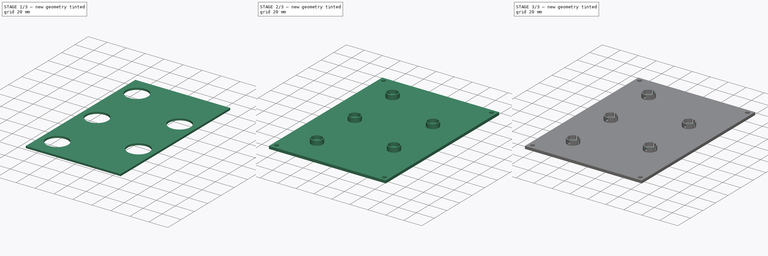
[diagram: build sequence overview — one tinted view per stage of 3, left to right]
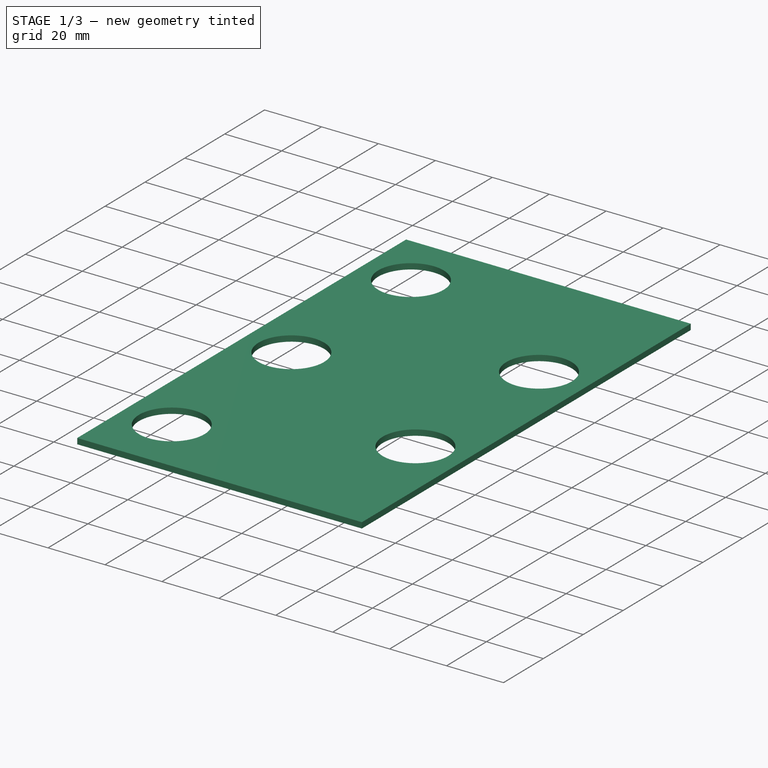
[diagram: stage 1 of 3 — iso view after this stage's code; geometry added in this stage tinted green]
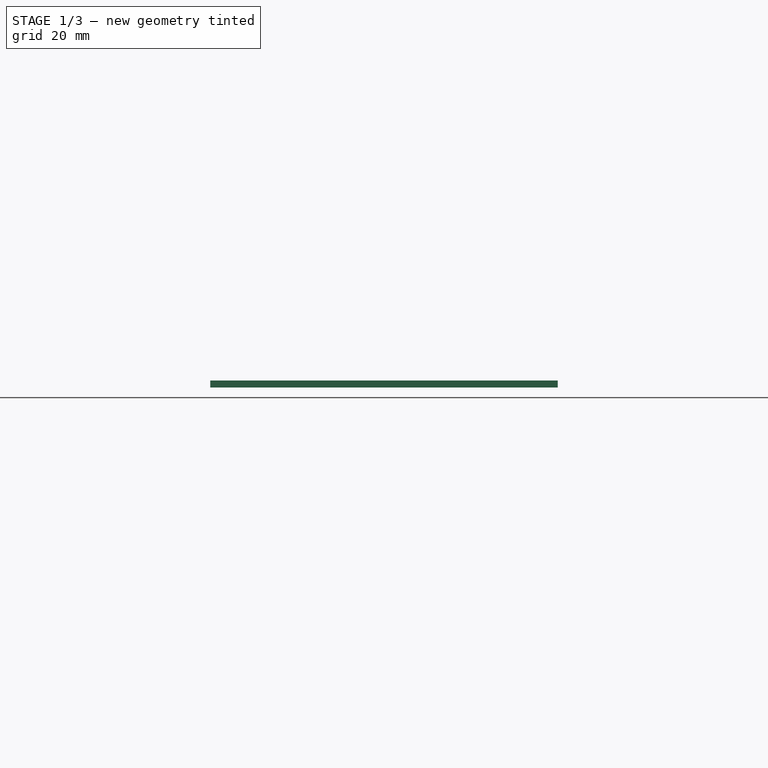
[diagram: stage 1 of 3 — front view after this stage's code; geometry added in this stage tinted green]
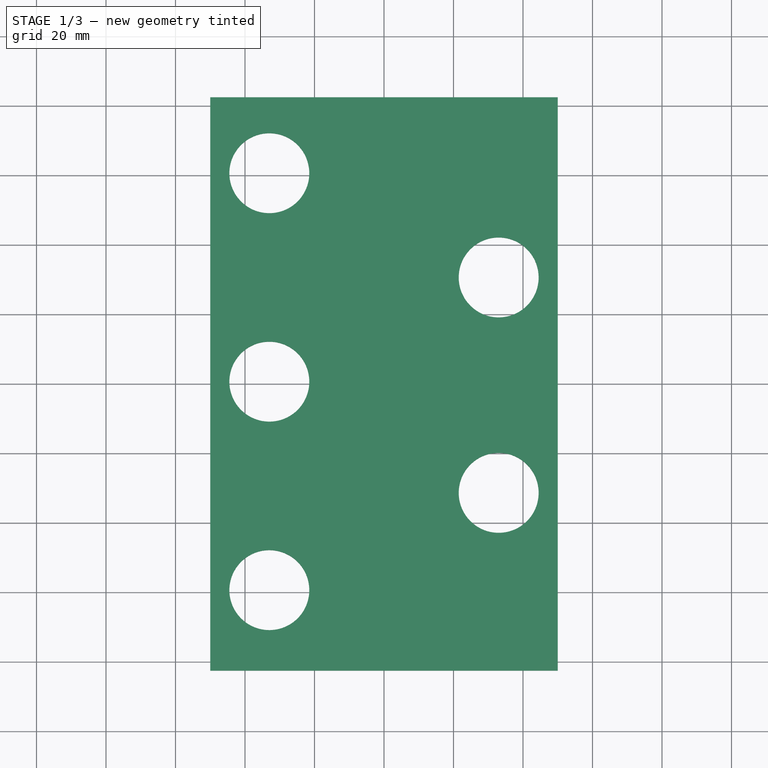
[diagram: stage 1 of 3 — top view after this stage's code; geometry added in this stage tinted green]
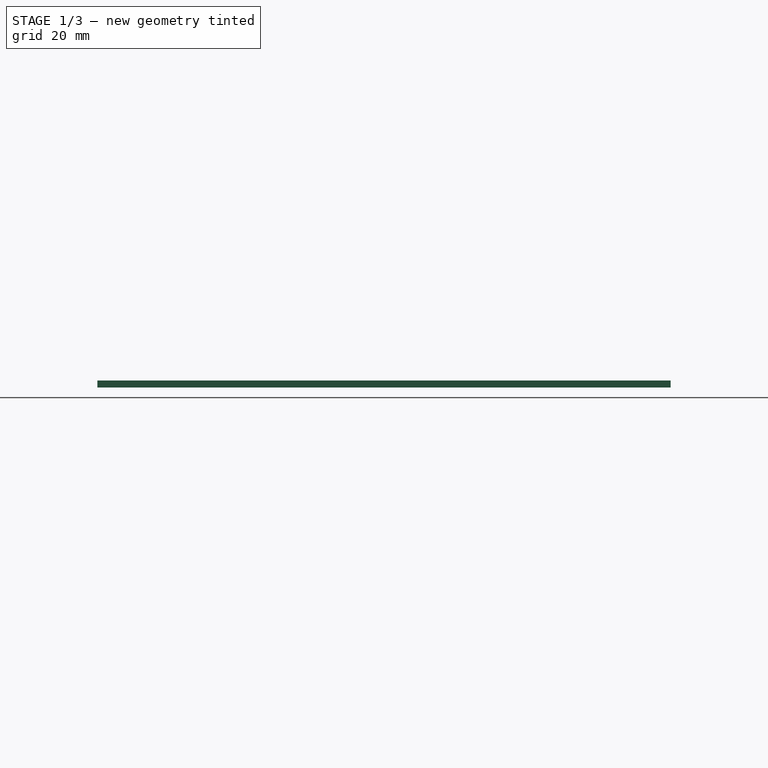
[diagram: stage 1 of 3 — right view after this stage's code; geometry added in this stage tinted green]
FCSTD DOCUMENT  (FreeCAD 0.19R23578 (Git))
Label: nudge_lamp_holder
License: All rights reserved
LicenseURL: http://en.wikipedia.org/wiki/All_rights_reserved
objects: Sketcher::SketchObject×7, PartDesign::Pocket×4, PartDesign::Pad×2, PartDesign::Hole×1, PartDesign::Body×1
note: 22 computed .brp shape members not serialized (recipe doc carries the construction recipe); baked Part::Feature solids carry a one-line shape summary decoded from their .brp

FEATURE [Sketcher::SketchObject] Sketch
  MapMode = 5
  Support = -> [XY_Plane]
  sketch-geometry (4):
    g0: LineSegment StartX=-50 StartY=82.5 StartZ=0 EndX=50 EndY=82.5 EndZ=0
    g1: LineSegment StartX=50 StartY=82.5 StartZ=0 EndX=50 EndY=-82.5 EndZ=0
    g2: LineSegment StartX=50 StartY=-82.5 StartZ=0 EndX=-50 EndY=-82.5 EndZ=0
    g3: LineSegment StartX=-50 StartY=-82.5 StartZ=0 EndX=-50 EndY=82.5 EndZ=0
  constraints (10):
    c: Coincident(g0,g1)
    c: Coincident(g1,g2)
    c: Coincident(g2,g3)
    c: Coincident(g3,g0)
    c: Horizontal(g2)
    c: Vertical(g1)
    c: Distance(g0) = 100
    c: Distance(g1) = 165
    c: Symmetric(g0,g0,g-2)
    c: Symmetric(g2,g0,g-1)
FEATURE [PartDesign::Pad] Pad
  AllowMultiFace = false
  Direction = (1,1,1)
  Length = 2
  Length2 = 100
  Profile = -> Sketch
  Type = 0
FEATURE [Sketcher::SketchObject] Sketch001
  ExternalGeometry = -> [Pad]
  MapMode = 5
  Placement = pos=(0,0,0) rot=(1,0,0;3.14159rad)
  Support = -> [Pad]
  expr: Constraints[8] = 141 - 75
  sketch-geometry (5):
    g0: Circle CenterX=-33 CenterY=59.3431 CenterZ=0 NormalX=0 NormalY=0 NormalZ=1 AngleXU=0 Radius=11.5
    g1: Circle CenterX=-33 CenterY=-0.656905 CenterZ=0 NormalX=0 NormalY=0 NormalZ=1 AngleXU=0 Radius=11.5
    g2: Circle CenterX=-33 CenterY=-60.6569 CenterZ=0 NormalX=0 NormalY=0 NormalZ=1 AngleXU=0 Radius=11.5
    g3: Circle CenterX=33 CenterY=31.3431 CenterZ=0 NormalX=0 NormalY=0 NormalZ=1 AngleXU=0 Radius=11.5
    g4: Circle CenterX=33 CenterY=-30.6569 CenterZ=0 NormalX=0 NormalY=0 NormalZ=1 AngleXU=0 Radius=11.5
  constraints (14):
    c: Diameter(g1) = 23
    c: Equal(g1,g0)
    c: Equal(g1,g2) = 23
    c: DistanceY(g2,g1) = 60
    c: DistanceY(g1,g0) = 60
    c: Diameter(g3) = 23
    c: Equal(g3,g4) = 23
    c: DistanceY(g4,g3) = 62
    c: DistanceX(g0,g3) = 66
    c: DistanceX(g0,g-1) = 33
    c: DistanceX(g1,g3) = 66
    c: DistanceX(g1,g4) = 66
    c: DistanceX(g2,g4) = 66
    c: DistanceY(g3,g0) = 28
FEATURE [PartDesign::Pocket] Pocket
  BaseFeature = -> Pad
  Length = 2
  Length2 = 100
  Profile = -> Sketch001
  Type = 0
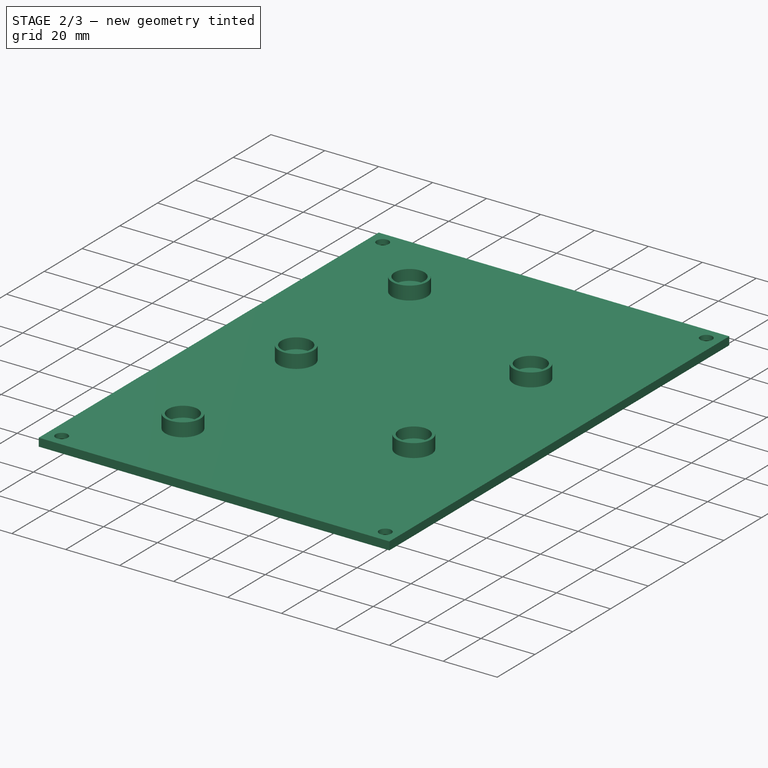
[diagram: stage 2 of 3 — iso view after this stage's code; geometry added in this stage tinted green]
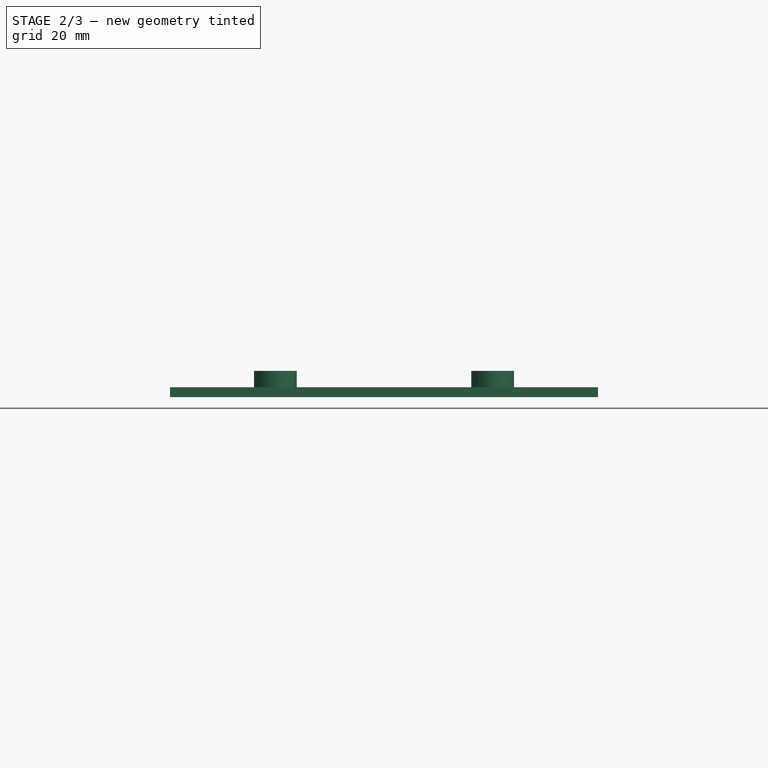
[diagram: stage 2 of 3 — front view after this stage's code; geometry added in this stage tinted green]
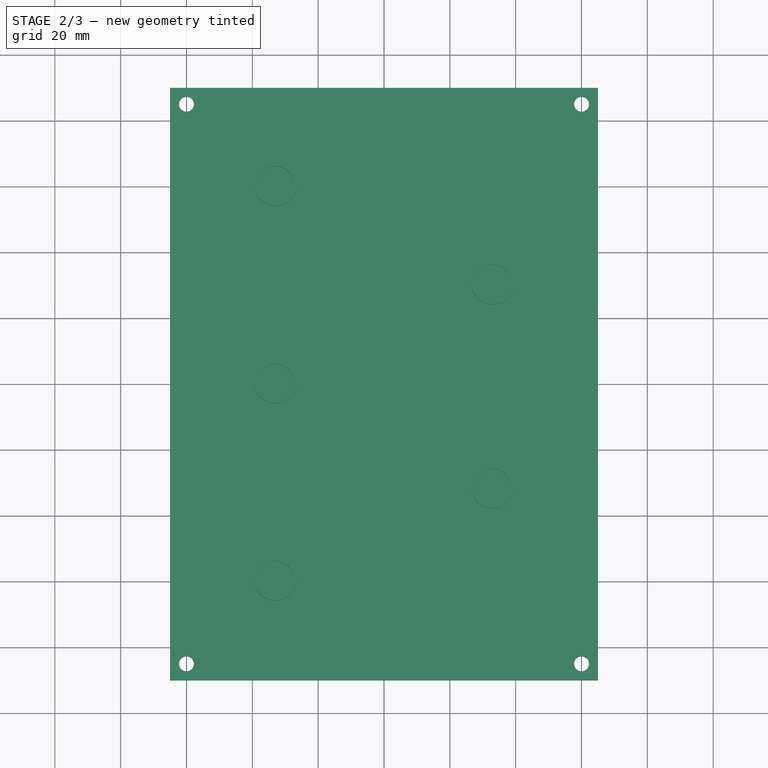
[diagram: stage 2 of 3 — top view after this stage's code; geometry added in this stage tinted green]
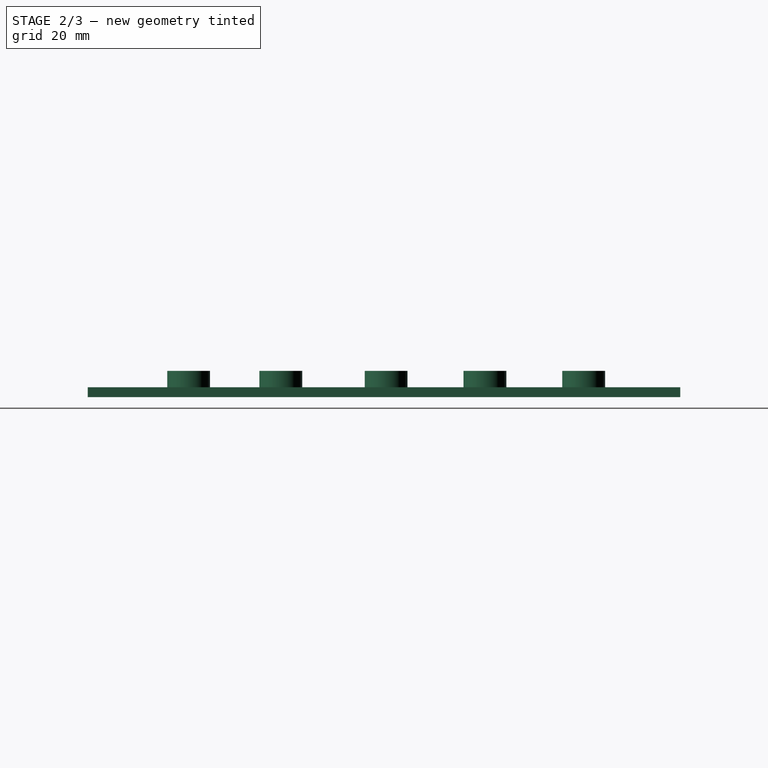
[diagram: stage 2 of 3 — right view after this stage's code; geometry added in this stage tinted green]
FEATURE [Sketcher::SketchObject] Sketch002
  ExternalGeometry = -> [Pocket]
  MapMode = 5
  Placement = pos=(0,0,0) rot=(1,0,0;3.14159rad)
  Support = -> [Pocket]
  sketch-geometry (4):
    g0: Circle CenterX=-45 CenterY=77.5 CenterZ=0 NormalX=0 NormalY=0 NormalZ=1 AngleXU=0 Radius=1.5
    g1: Circle CenterX=-45 CenterY=-77.5 CenterZ=0 NormalX=0 NormalY=0 NormalZ=1 AngleXU=0 Radius=1.5
    g2: Circle CenterX=45 CenterY=77.5 CenterZ=0 NormalX=0 NormalY=0 NormalZ=1 AngleXU=0 Radius=1.5
    g3: Circle CenterX=45 CenterY=-77.5 CenterZ=0 NormalX=0 NormalY=0 NormalZ=1 AngleXU=0 Radius=1.5
  constraints (12):
    c: Diameter(g0) = 3
    c: DistanceY(g0,g-4) = 5
    c: DistanceX(g-4,g0) = 5
    c: Equal(g0,g1) = 3
    c: Equal(g0,g2) = 3
    c: DistanceY(g-6,g3) = 5
    c: DistanceX(g3,g-6) = 5
    c: DistanceY(g-6,g1) = 5
    c: DistanceX(g-6,g1) = 5
    c: DistanceX(g2,g-5) = 5
    c: DistanceY(g2,g-5) = 5
    c: Diameter(g3) = 3
FEATURE [PartDesign::Hole] Hole
  BaseFeature = -> Pocket
  Depth = 25
  DepthType = 0
  Diameter = 4.5
  DrillPoint = 1
  DrillPointAngle = 118
  HoleCutCountersinkAngle = 90
  HoleCutDepth = 0
  HoleCutDiameter = 6.7
  HoleCutType = 2
  ModelActualThread = false
  Profile = -> Sketch002
  Tapered = false
  TaperedAngle = 90
  ThreadAngle = 0
  ThreadClass = 0
  ThreadCutOffInner = 0
  ThreadCutOffOuter = 0
  ThreadDirection = 0
  ThreadFit = 0
  ThreadPitch = 0
  ThreadSize = 11
  ThreadType = 1
  Threaded = false
FEATURE [Sketcher::SketchObject] Sketch003
  ExternalGeometry = -> [Hole]
  MapMode = 5
  Placement = pos=(0,0,2) rot=(0,0,1;0rad)
  Support = -> [Hole]
  sketch-geometry (5):
    g0: Circle CenterX=33 CenterY=30.6569 CenterZ=0 NormalX=0 NormalY=0 NormalZ=1 AngleXU=0 Radius=6.5
    g1: Circle CenterX=-33 CenterY=60.6569 CenterZ=0 NormalX=0 NormalY=0 NormalZ=1 AngleXU=0 Radius=6.5
    g2: Circle CenterX=-33 CenterY=0.656905 CenterZ=0 NormalX=0 NormalY=0 NormalZ=1 AngleXU=0 Radius=6.5
    g3: Circle CenterX=33 CenterY=-31.3431 CenterZ=0 NormalX=0 NormalY=0 NormalZ=1 AngleXU=0 Radius=6.5
    g4: Circle CenterX=-45 CenterY=-77.5 CenterZ=0 NormalX=0 NormalY=0 NormalZ=1 AngleXU=0 Radius=6.5
  constraints (10):
    c: Coincident(g1,g-3)
    c: Coincident(g2,g-6)
    c: Coincident(g3,g-5)
    c: Diameter(g2) = 13
    c: Diameter(g4) = 13
    c: Diameter(g3) = 13
    c: Diameter(g0) = 13
    c: Coincident(g-7,g0)
    c: Diameter(g1) = 13
    c: Coincident(g4,g-8)
FEATURE [PartDesign::Pad] Pad001
  BaseFeature = -> Hole
  Direction = (1,1,1)
  Length = 5
  Length2 = 100
  Profile = -> Sketch003
  Refine = true
  Type = 0
FEATURE [Sketcher::SketchObject] Sketch004
  ExternalGeometry = -> [Pad001]
  MapMode = 5
  Placement = pos=(0,0,3) rot=(1,0,0;3.14159rad)
  Support = -> [Pad001]
  sketch-geometry (5):
    g0: Circle CenterX=-33 CenterY=60.6569 CenterZ=0 NormalX=0 NormalY=0 NormalZ=1 AngleXU=0 Radius=5.5
    g1: Circle CenterX=44.5 CenterY=31.3431 CenterZ=0 NormalX=0 NormalY=0 NormalZ=1 AngleXU=0 Radius=5.5
    g2: Circle CenterX=-33 CenterY=59.3431 CenterZ=0 NormalX=0 NormalY=0 NormalZ=1 AngleXU=0 Radius=5.5
    g3: Circle CenterX=41 CenterY=75 CenterZ=0 NormalX=0 NormalY=0 NormalZ=1 AngleXU=0 Radius=5.5
    g4: Circle CenterX=41 CenterY=75 CenterZ=0 NormalX=0 NormalY=0 NormalZ=1 AngleXU=0 Radius=5.5
  constraints (10):
    c: Coincident(g0,g-3)
    c: Diameter(g0) = 11
    c: Equal(g0,g1) = 11
    c: Coincident(g1,g-5)
    c: Equal(g0,g2) = 11
    c: Coincident(g2,g-4)
    c: Equal(g0,g3) = 11
    c: Coincident(g3,g-6)
    c: Equal(g0,g4) = 11
    c: Coincident(g4,g-7)
FEATURE [PartDesign::Pocket] Pocket001
  BaseFeature = -> Pad001
  Length = 4
  Length2 = 100
  Profile = -> Sketch004
  Type = 0
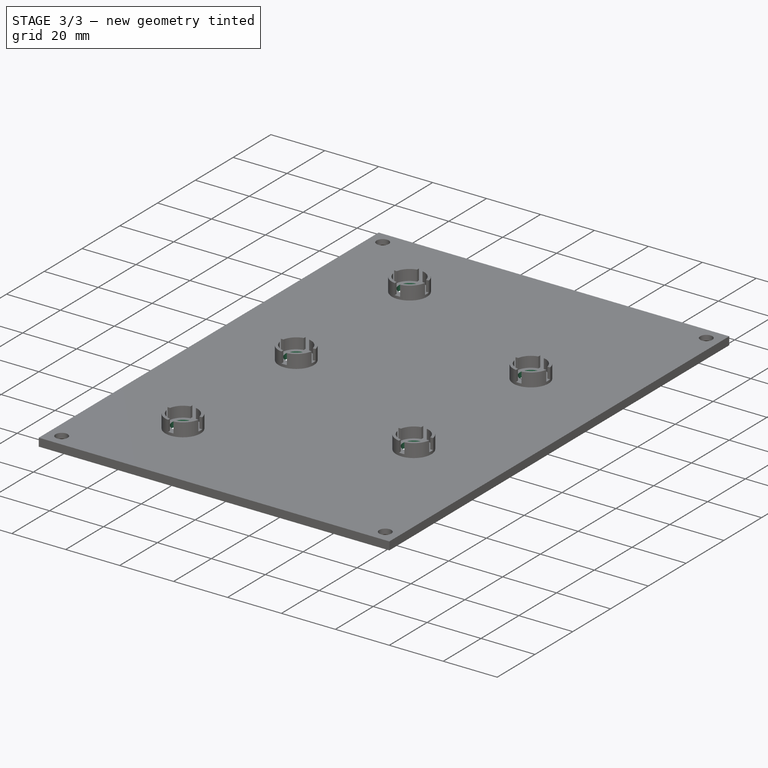
[diagram: stage 3 of 3 — iso view after this stage's code; geometry added in this stage tinted green]
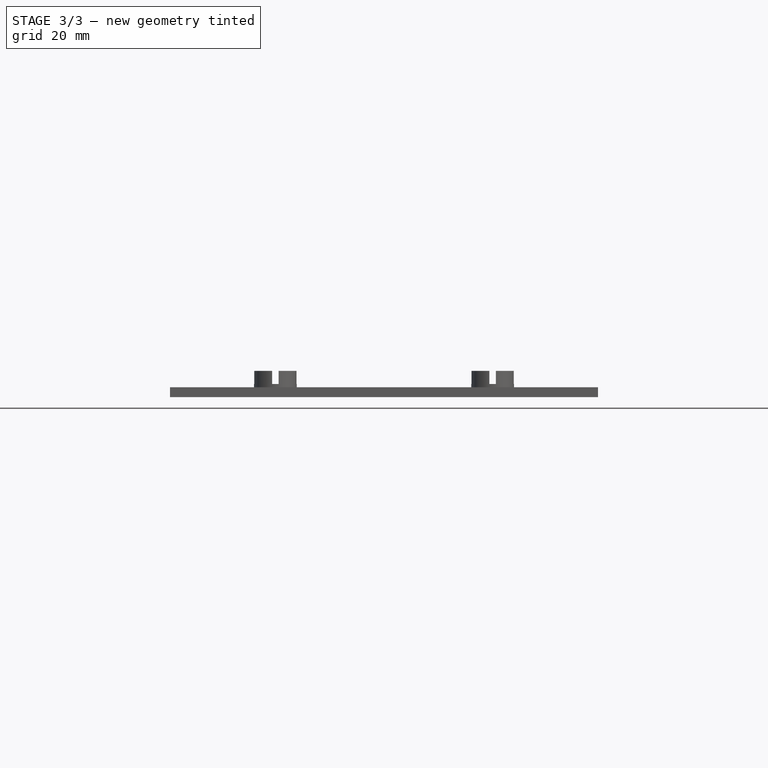
[diagram: stage 3 of 3 — front view after this stage's code; geometry added in this stage tinted green]
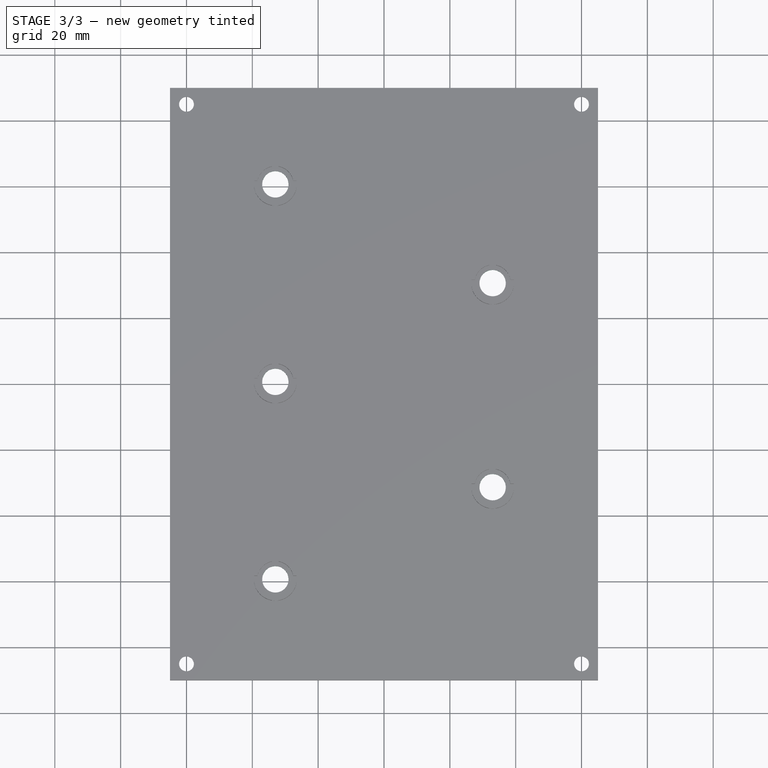
[diagram: stage 3 of 3 — top view after this stage's code; geometry added in this stage tinted green]
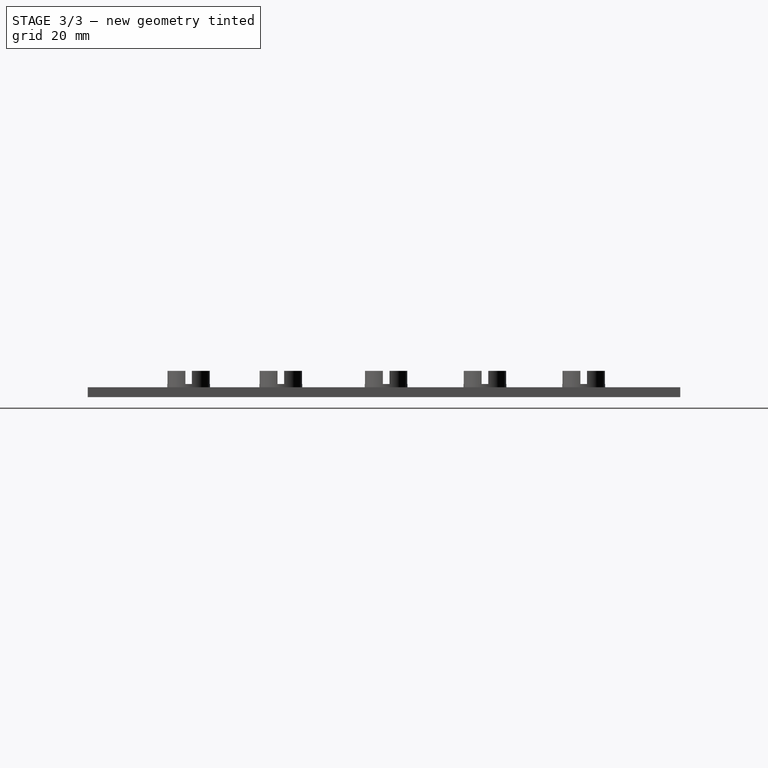
[diagram: stage 3 of 3 — right view after this stage's code; geometry added in this stage tinted green]
FEATURE [Sketcher::SketchObject] Sketch005
  ExternalGeometry = -> [Pocket001]
  MapMode = 5
  Placement = pos=(0,0,4) rot=(0,0,1;0rad)
  Support = -> [Pocket001]
  sketch-geometry (5):
    g0: Circle CenterX=-33 CenterY=60.6569 CenterZ=0 NormalX=0 NormalY=0 NormalZ=1 AngleXU=0 Radius=4
    g1: Circle CenterX=33 CenterY=30.6569 CenterZ=0 NormalX=0 NormalY=0 NormalZ=1 AngleXU=0 Radius=4
    g2: Circle CenterX=-33 CenterY=0.656905 CenterZ=0 NormalX=0 NormalY=0 NormalZ=1 AngleXU=0 Radius=4
    g3: Circle CenterX=33 CenterY=-31.3431 CenterZ=0 NormalX=0 NormalY=0 NormalZ=1 AngleXU=0 Radius=4
    g4: Circle CenterX=-33 CenterY=-59.3431 CenterZ=0 NormalX=0 NormalY=0 NormalZ=1 AngleXU=0 Radius=4
  constraints (10):
    c: Coincident(g0,g-3)
    c: Diameter(g0) = 8
    c: Equal(g0,g1) = 8
    c: Coincident(g1,g-4)
    c: Equal(g0,g2) = 8
    c: Coincident(g2,g-5)
    c: Equal(g0,g3) = 8
    c: Coincident(g3,g-6)
    c: Equal(g0,g4) = 8
    c: Coincident(g4,g-7)
FEATURE [PartDesign::Pocket] Pocket002
  BaseFeature = -> Pocket001
  Length = 5
  Length2 = 100
  Profile = -> Sketch005
  Type = 1
FEATURE [Sketcher::SketchObject] Sketch006
  ExternalGeometry = -> [Pocket002]
  MapMode = 5
  Placement = pos=(0,0,8) rot=(0,0,1;0rad)
  Support = -> [Pocket002]
  expr: Constraints[20] = 13 / 2
  expr: Constraints[23] = 13 / 2
  expr: Constraints[119] = 13 / 2
  expr: Constraints[44] = 13 / 2
  expr: Constraints[47] = 13 / 2
  expr: Constraints[70] = 13 / 2
  expr: Constraints[72] = 13 / 2
  expr: Constraints[120] = 13 / 2
  expr: Constraints[93] = 13 / 2
  expr: Constraints[95] = 13 / 2
  sketch-geometry (40):
    g0: LineSegment StartX=-34 StartY=67.1569 StartZ=0 EndX=-32 EndY=67.1569 EndZ=0
    g1: LineSegment StartX=-32 StartY=67.1569 StartZ=0 EndX=-32 EndY=54.1569 EndZ=0
    g2: LineSegment StartX=-32 StartY=54.1569 StartZ=0 EndX=-34 EndY=54.1569 EndZ=0
    g3: LineSegment StartX=-34 StartY=54.1569 StartZ=0 EndX=-34 EndY=67.1569 EndZ=0
    g4: LineSegment StartX=-26.5 StartY=59.6569 StartZ=0 EndX=-39.5 EndY=59.6569 EndZ=0
    g5: LineSegment StartX=-39.5 StartY=59.6569 StartZ=0 EndX=-39.5 EndY=61.6569 EndZ=0
    g6: LineSegment StartX=-39.5 StartY=61.6569 StartZ=0 EndX=-26.5 EndY=61.6569 EndZ=0
    g7: LineSegment StartX=-26.5 StartY=61.6569 StartZ=0 EndX=-26.5 EndY=59.6569 EndZ=0
    g8: LineSegment StartX=-32 StartY=7.15691 StartZ=0 EndX=-32 EndY=-5.84309 EndZ=0
    g9: LineSegment StartX=-32 StartY=-5.84309 StartZ=0 EndX=-34 EndY=-5.84309 EndZ=0
    g10: LineSegment StartX=-34 StartY=-5.84309 StartZ=0 EndX=-34 EndY=7.15691 EndZ=0
    g11: LineSegment StartX=-26.5 StartY=-0.343095 StartZ=0 EndX=-39.5 EndY=-0.343095 EndZ=0
    g12: LineSegment StartX=-39.5 StartY=-0.343095 StartZ=0 EndX=-39.5 EndY=1.65691 EndZ=0
    g13: LineSegment StartX=-39.5 StartY=1.65691 StartZ=0 EndX=-26.5 EndY=1.65691 EndZ=0
    g14: LineSegment StartX=-26.5 StartY=1.65691 StartZ=0 EndX=-26.5 EndY=-0.343095 EndZ=0
    g15: LineSegment StartX=-34 StartY=7.15691 StartZ=0 EndX=-32 EndY=7.15691 EndZ=0
    g16: LineSegment StartX=-32 StartY=-52.8431 StartZ=0 EndX=-32 EndY=-65.8431 EndZ=0
    g17: LineSegment StartX=-32 StartY=-65.8431 StartZ=0 EndX=-34 EndY=-65.8431 EndZ=0
    g18: LineSegment StartX=-34 StartY=-65.8431 StartZ=0 EndX=-34 EndY=-52.8431 EndZ=0
    g19: LineSegment StartX=-26.5 StartY=-60.3431 StartZ=0 EndX=-39.5 EndY=-60.3431 EndZ=0
    g20: LineSegment StartX=-39.5 StartY=-60.3431 StartZ=0 EndX=-39.5 EndY=-58.3431 EndZ=0
    g21: LineSegment StartX=-39.5 StartY=-58.3431 StartZ=0 EndX=-26.5 EndY=-58.3431 EndZ=0
    g22: LineSegment StartX=-26.5 StartY=-58.3431 StartZ=0 EndX=-26.5 EndY=-60.3431 EndZ=0
    g23: LineSegment StartX=-34 StartY=-52.8431 StartZ=0 EndX=-32 EndY=-52.8431 EndZ=0
    g24: LineSegment StartX=34 StartY=-24.8431 StartZ=0 EndX=34 EndY=-37.8431 EndZ=0
    g25: LineSegment StartX=34 StartY=-37.8431 StartZ=0 EndX=32 EndY=-37.8431 EndZ=0
    g26: LineSegment StartX=32 StartY=-37.8431 StartZ=0 EndX=32 EndY=-24.8431 EndZ=0
    g27: LineSegment StartX=39.5 StartY=-32.3431 StartZ=0 EndX=26.5 EndY=-32.3431 EndZ=0
    g28: LineSegment StartX=26.5 StartY=-32.3431 StartZ=0 EndX=26.5 EndY=-30.3431 EndZ=0
    g29: LineSegment StartX=26.5 StartY=-30.3431 StartZ=0 EndX=39.5 EndY=-30.3431 EndZ=0
    g30: LineSegment StartX=39.5 StartY=-30.3431 StartZ=0 EndX=39.5 EndY=-32.3431 EndZ=0
    g31: LineSegment StartX=32 StartY=-24.8431 StartZ=0 EndX=34 EndY=-24.8431 EndZ=0
    g32: LineSegment StartX=34 StartY=37.1569 StartZ=0 EndX=34 EndY=24.1569 EndZ=0
    g33: LineSegment StartX=34 StartY=24.1569 StartZ=0 EndX=32 EndY=24.1569 EndZ=0
    g34: LineSegment StartX=32 StartY=24.1569 StartZ=0 EndX=32 EndY=37.1569 EndZ=0
    g35: LineSegment StartX=39.5 StartY=29.6569 StartZ=0 EndX=26.5 EndY=29.6569 EndZ=0
    g36: LineSegment StartX=26.5 StartY=29.6569 StartZ=0 EndX=26.5 EndY=31.6569 EndZ=0
    g37: LineSegment StartX=26.5 StartY=31.6569 StartZ=0 EndX=39.5 EndY=31.6569 EndZ=0
    g38: LineSegment StartX=39.5 StartY=31.6569 StartZ=0 EndX=39.5 EndY=29.6569 EndZ=0
    g39: LineSegment StartX=32 StartY=37.1569 StartZ=0 EndX=34 EndY=37.1569 EndZ=0
  constraints (122):
    c: Coincident(g0,g1)
    c: Coincident(g1,g2)
    c: Coincident(g2,g3)
    c: Coincident(g3,g0)
    c: Horizontal(g0)
    c: Vertical(g1)
    c: Coincident(g4,g5)
    c: Coincident(g5,g6)
    c: Coincident(g6,g7)
    c: Coincident(g7,g4)
    c: Horizontal(g4)
    c: Vertical(g5)
    c: Distance(g7) = 2
    c: Distance(g0) = 2
    c: Equal(g4,g6)
    c: Equal(g5,g7)
    c: Equal(g0,g2)
    c: Equal(g1,g3)
    c: Distance(g1) = 13
    c: Distance(g4) = 13
    c: DistanceX(g5,g-3) = 6.5
    c: DistanceY(g-3,g5) = 1
    c: DistanceX(g0,g-3) = 1
    c: DistanceY(g-3,g0) = 6.5
    c: Coincident(g15,g8)
    c: Coincident(g8,g9)
    c: Coincident(g9,g10)
    c: Coincident(g10,g15)
    c: Horizontal(g15)
    c: Vertical(g8)
    c: Coincident(g11,g12)
    c: Coincident(g12,g13)
    c: Coincident(g13,g14)
    c: Coincident(g14,g11)
    c: Horizontal(g11)
    c: Vertical(g12)
    c: Distance(g14) = 2
    c: Distance(g15) = 2
    c: Equal(g11,g13)
    c: Equal(g12,g14)
    c: Equal(g15,g9)
    c: Equal(g8,g10)
    c: Distance(g8) = 13
    c: Distance(g11) = 13
    c: DistanceX(g11,g-4) = 6.5
    c: DistanceY(g-4,g12) = 1
    c: DistanceX(g-4,g8) = 1
    c: DistanceY(g8,g-4) = 6.5
    c: Coincident(g23,g16)
    c: Coincident(g16,g17)
    c: Coincident(g17,g18)
    c: Coincident(g18,g23)
    c: Horizontal(g23)
    c: Vertical(g16)
    c: Coincident(g19,g20)
    c: Coincident(g20,g21)
    c: Coincident(g21,g22)
    c: Coincident(g22,g19)
    c: Horizontal(g19)
    c: Vertical(g20)
    c: Distance(g22) = 2
    c: Distance(g23) = 2
    c: Equal(g19,g21)
    c: Equal(g20,g22)
    c: Equal(g23,g17)
    c: Equal(g16,g18)
    c: Distance(g16) = 13
    c: Distance(g19) = 13
    c: Coincident(g23,g-5)
    c: DistanceX(g18,g-5) = 1
    c: DistanceY(g-5,g18) = 6.5
    c: DistanceY(g-5,g20) = 1
    c: DistanceX(g20,g-5) = 6.5
    c: Coincident(g31,g24)
    c: Coincident(g24,g25)
    c: Coincident(g25,g26)
    c: Coincident(g26,g31)
    c: Horizontal(g31)
    c: Vertical(g24)
    c: Coincident(g27,g28)
    c: Coincident(g28,g29)
    c: Coincident(g29,g30)
    c: Coincident(g30,g27)
    c: Horizontal(g27)
    c: Vertical(g28)
    c: Distance(g30) = 2
    c: Distance(g31) = 2
    c: Equal(g27,g29)
    c: Equal(g28,g30)
    c: Equal(g31,g25)
    c: Equal(g24,g26)
    c: Distance(g24) = 13
    c: Distance(g27) = 13
    c: DistanceX(g28,g-6) = 6.5
    c: DistanceY(g-6,g28) = 1
    c: DistanceY(g-6,g26) = 6.5
    c: DistanceX(g25,g-6) = 1
    c: Coincident(g39,g32)
    c: Coincident(g32,g33)
    c: Coincident(g33,g34)
    c: Coincident(g34,g39)
    c: Horizontal(g39)
    c: Vertical(g32)
    c: Coincident(g35,g36)
    c: Coincident(g36,g37)
    c: Coincident(g37,g38)
    c: Coincident(g38,g35)
    c: Horizontal(g35)
    c: Vertical(g36)
    c: Distance(g38) = 2
    c: Distance(g39) = 2
    c: Equal(g35,g37)
    c: Equal(g36,g38)
    c: Equal(g39,g33)
    c: Equal(g32,g34)
    c: Distance(g32) = 13
    c: Distance(g35) = 13
    c: Coincident(g39,g-7)
    c: DistanceY(g-7,g36) = 1
    c: DistanceX(g36,g-7) = 6.5
    c: DistanceY(g-7,g34) = 6.5
    c: DistanceX(g34,g-7) = 1
FEATURE [PartDesign::Pocket] Pocket003
  BaseFeature = -> Pocket002
  Length = 4
  Length2 = 100
  Profile = -> Sketch006
  Type = 0
FEATURE [PartDesign::Body] Body
  Group = -> [Sketch,Pad,Sketch001,Pocket,Sketch002,Hole,Sketch003,Pad001,Sketch004,Pocket001,Sketch005,Pocket002,Sketch006,Pocket003]
  Origin = -> Origin
  Tip = -> Pocket003
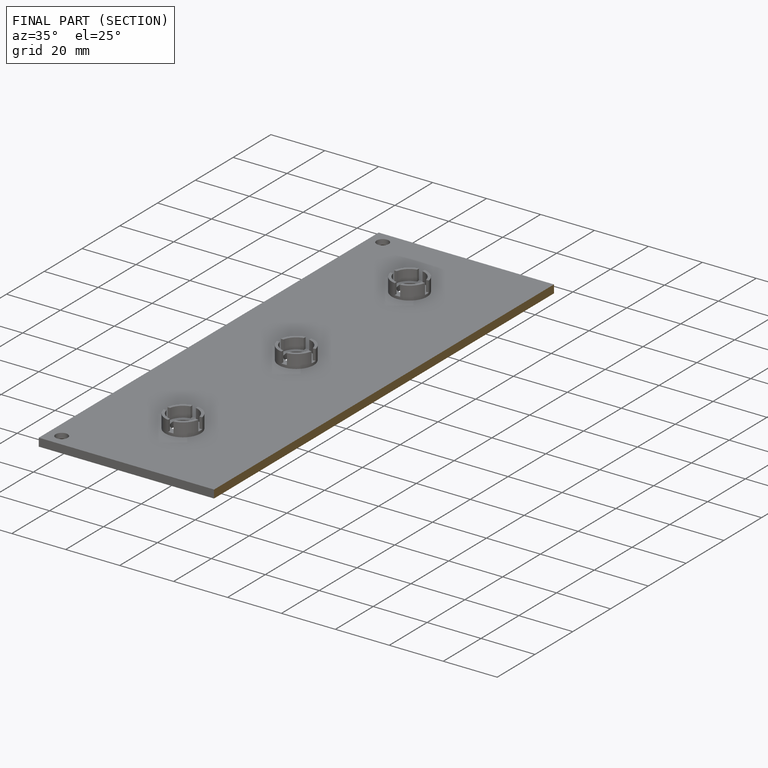
[diagram: finished part — half-section view (interior)]
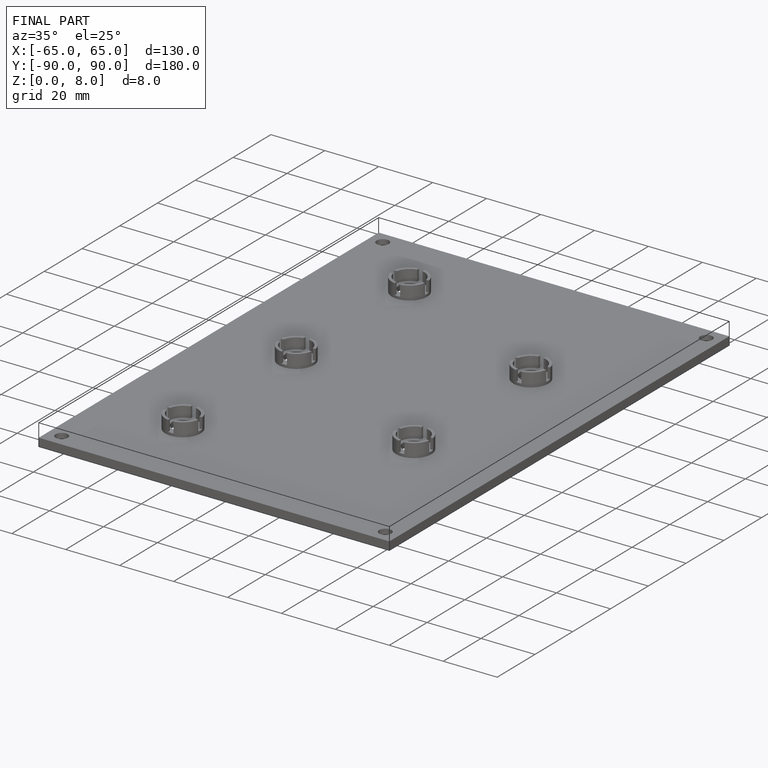
[diagram: finished part — iso view with bounding-box wireframe]
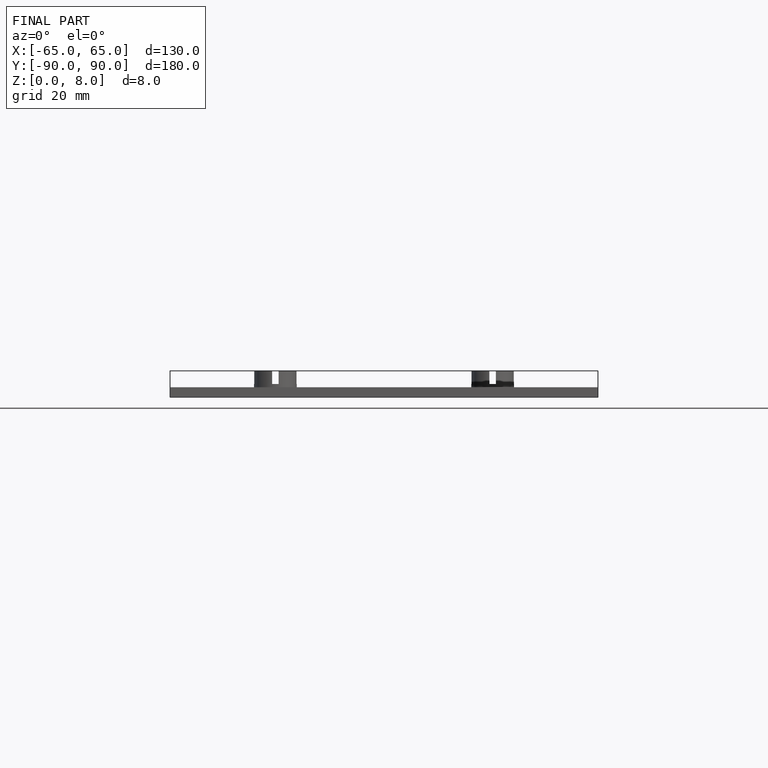
[diagram: finished part — front view with bounding-box wireframe]
